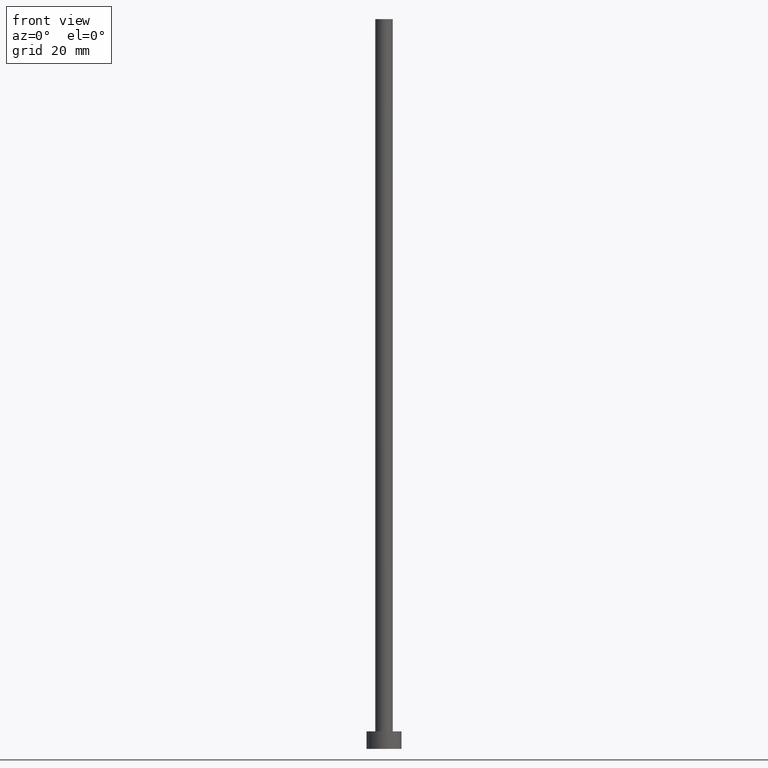
[diagram: clean part render]
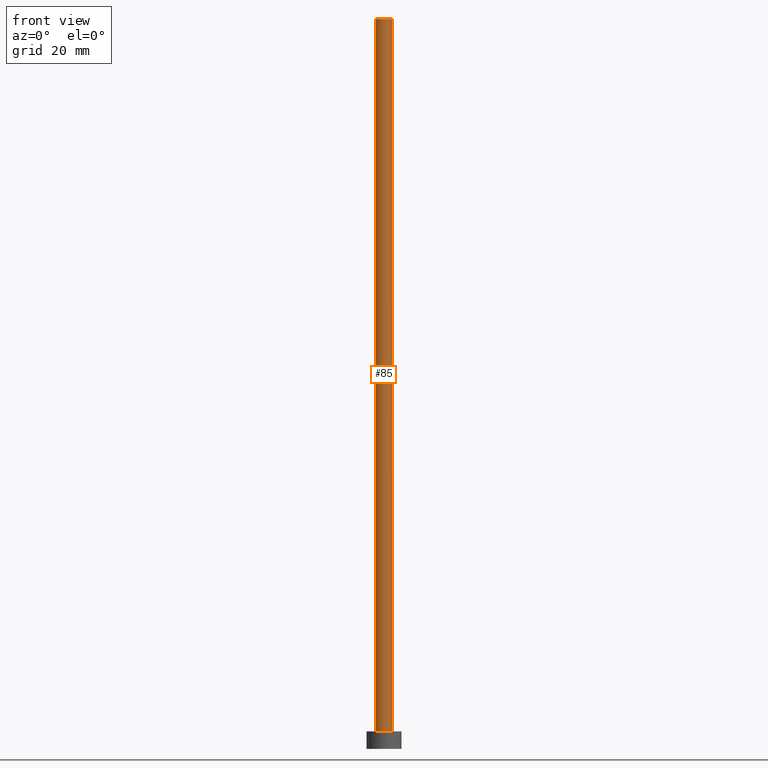
[diagram: same view with one face highlighted and labeled with its STEP entity id]
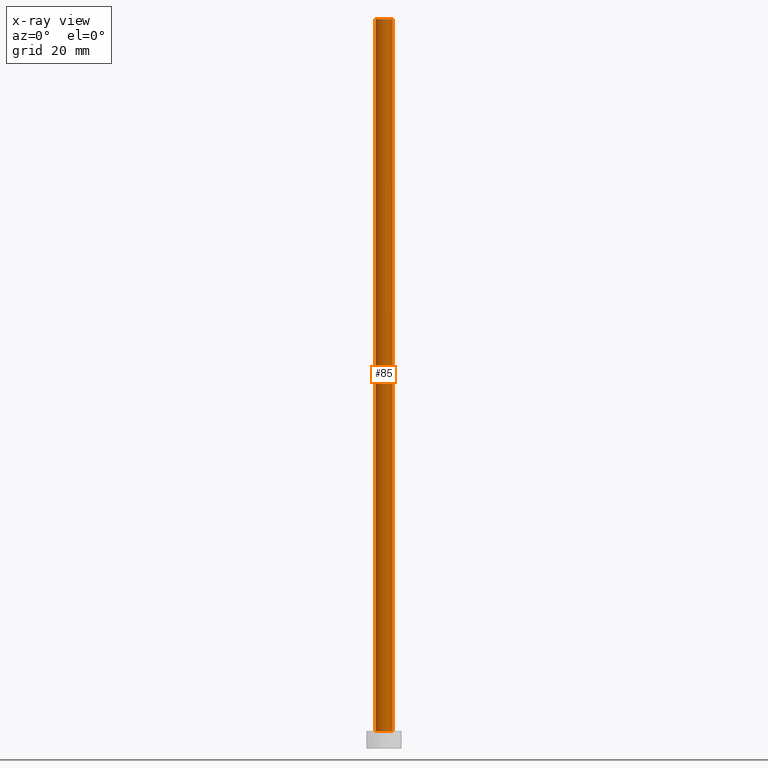
[diagram: x-ray of the same camera — body ghosted, the highlighted face saturated]
A machine part, front view. The second image highlights one B-rep face of the part: STEP entity #85.
The next image is the same camera in x-ray: the body ghosted, the highlighted face saturated — about 0% of this face is hidden behind the body in this view.
In plain terms, the highlighted cylindrical surface (edge-blend (fillet) strip) has radius 1.5 mm, axis along (-0, -0, -1).
Its self-contained STEP definition (entity closure, byte-faithful):
#12 = FACE_OUTER_BOUND ( 'NONE', #48, .T. ) ;
#26 = VERTEX_POINT ( 'NONE', #36 ) ;
#29 = ORIENTED_EDGE ( 'NONE', *, *, #165, .F. ) ;
#36 = CARTESIAN_POINT ( 'NONE',  ( 1.500000000000000222, 1.836970198721029934E-16, 125.0000000000000000 ) ) ;
#38 = DIRECTION ( 'NONE',  ( -0.000000000000000000, -0.000000000000000000, -1.000000000000000000 ) ) ;
#41 = ORIENTED_EDGE ( 'NONE', *, *, #210, .F. ) ;
#42 = DIRECTION ( 'NONE',  ( 1.000000000000000000, 0.000000000000000000, 0.000000000000000000 ) ) ;
#48 = EDGE_LOOP ( 'NONE', ( #41, #29, #136, #167 ) ) ;
#51 = CARTESIAN_POINT ( 'NONE',  ( 0.000000000000000000, 0.000000000000000000, 125.0000000000000000 ) ) ;
#60 = LINE ( 'NONE', #93, #236 ) ;
#79 = VERTEX_POINT ( 'NONE', #105 ) ;
#85 = ADVANCED_FACE ( 'NONE', ( #12 ), #107, .T. ) ;
#92 = CIRCLE ( 'NONE', #166, 1.500000000000000222 ) ;
#93 = CARTESIAN_POINT ( 'NONE',  ( 1.500000000000000222, 1.836970198721029934E-16, 125.0000000000000000 ) ) ;
#96 = CARTESIAN_POINT ( 'NONE',  ( 0.000000000000000000, 0.000000000000000000, 125.0000000000000000 ) ) ;
#105 = CARTESIAN_POINT ( 'NONE',  ( -1.500000000000000222, 0.000000000000000000, 3.000000000000000000 ) ) ;
#107 = CYLINDRICAL_SURFACE ( 'NONE', #248, 1.500000000000000222 ) ;
#120 = LINE ( 'NONE', #181, #146 ) ;
#124 = DIRECTION ( 'NONE',  ( 1.000000000000000000, 0.000000000000000000, 0.000000000000000000 ) ) ;
#127 = CIRCLE ( 'NONE', #203, 1.500000000000000222 ) ;
#136 = ORIENTED_EDGE ( 'NONE', *, *, #201, .T. ) ;
#143 = CARTESIAN_POINT ( 'NONE',  ( 1.500000000000000222, 1.836970198721029934E-16, 3.000000000000000000 ) ) ;
#146 = VECTOR ( 'NONE', #243, 1000.000000000000000 ) ;
#148 = VERTEX_POINT ( 'NONE', #143 ) ;
#158 = CARTESIAN_POINT ( 'NONE',  ( -1.500000000000000222, 0.000000000000000000, 125.0000000000000000 ) ) ;
#160 = VERTEX_POINT ( 'NONE', #158 ) ;
#165 = EDGE_CURVE ( 'NONE', #160, #26, #127, .T. ) ;
#166 = AXIS2_PLACEMENT_3D ( 'NONE', #222, #175, #42 ) ;
#167 = ORIENTED_EDGE ( 'NONE', *, *, #255, .T. ) ;
#170 = DIRECTION ( 'NONE',  ( -0.000000000000000000, -0.000000000000000000, -1.000000000000000000 ) ) ;
#175 = DIRECTION ( 'NONE',  ( 0.000000000000000000, 0.000000000000000000, 1.000000000000000000 ) ) ;
#181 = CARTESIAN_POINT ( 'NONE',  ( -1.500000000000000222, 0.000000000000000000, 125.0000000000000000 ) ) ;
#199 = DIRECTION ( 'NONE',  ( 0.000000000000000000, 0.000000000000000000, 1.000000000000000000 ) ) ;
#201 = EDGE_CURVE ( 'NONE', #160, #79, #120, .T. ) ;
#203 = AXIS2_PLACEMENT_3D ( 'NONE', #96, #199, #124 ) ;
#210 = EDGE_CURVE ( 'NONE', #26, #148, #60, .T. ) ;
#222 = CARTESIAN_POINT ( 'NONE',  ( 0.000000000000000000, 0.000000000000000000, 3.000000000000000000 ) ) ;
#236 = VECTOR ( 'NONE', #38, 1000.000000000000000 ) ;
#243 = DIRECTION ( 'NONE',  ( -0.000000000000000000, -0.000000000000000000, -1.000000000000000000 ) ) ;
#248 = AXIS2_PLACEMENT_3D ( 'NONE', #51, #170, #252 ) ;
#252 = DIRECTION ( 'NONE',  ( -1.000000000000000000, 0.000000000000000000, 0.000000000000000000 ) ) ;
#255 = EDGE_CURVE ( 'NONE', #79, #148, #92, .T. ) ;